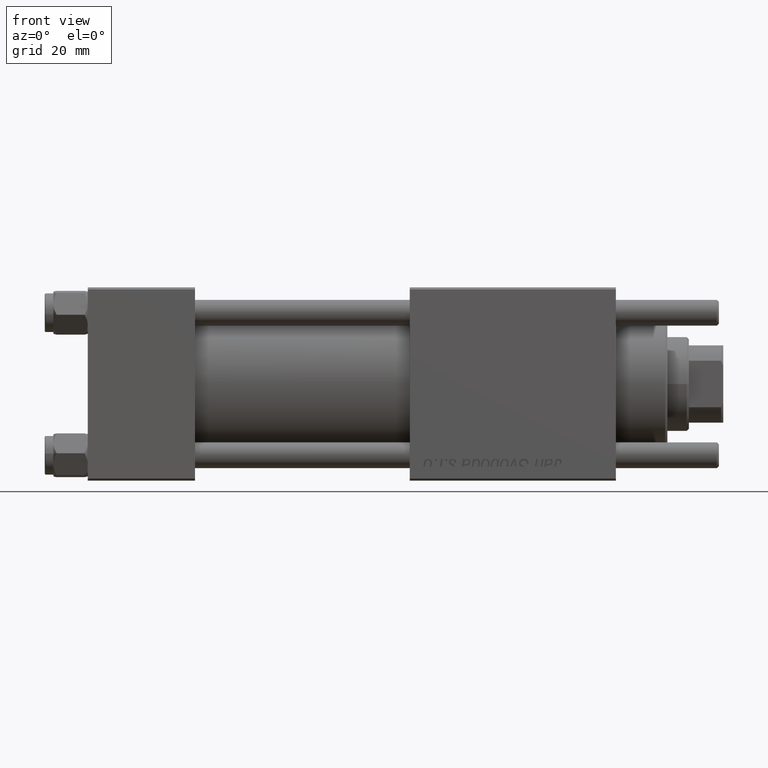
[diagram: clean part render]
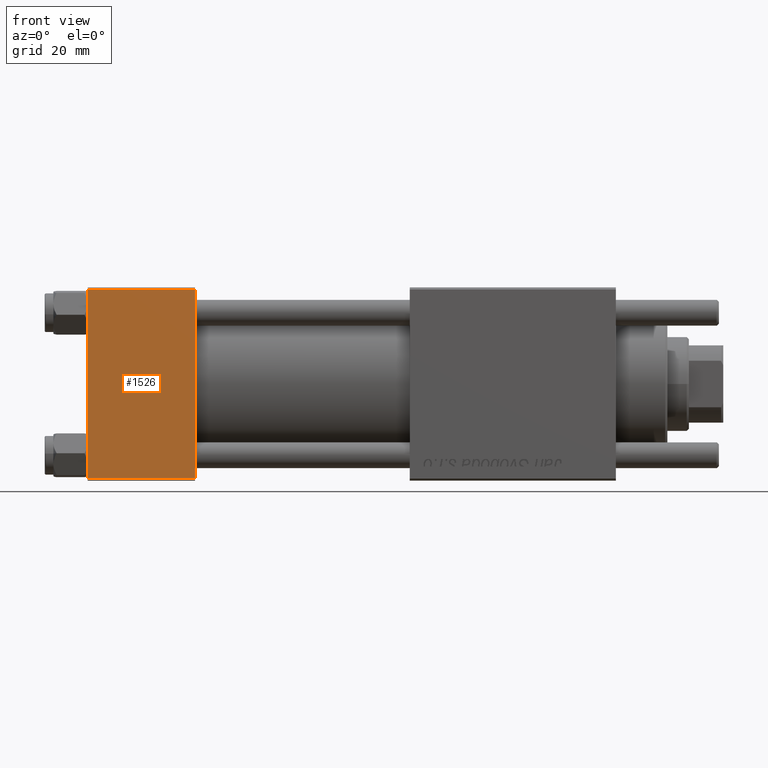
[diagram: same view with one face highlighted and labeled with its STEP entity id]
A machine part, front view. The second image highlights one B-rep face of the part: STEP entity #1526.
In plain terms, the highlighted planar face has unit normal (0, 1, 0).
Its self-contained STEP definition (entity closure, byte-faithful):
#256 = ORIENTED_EDGE ( 'NONE', *, *, #56073, .T. ) ;
#267 = DIRECTION ( 'NONE',  ( 1.000000000000000000, 0.000000000000000000, 0.000000000000000000 ) ) ;
#309 = ORIENTED_EDGE ( 'NONE', *, *, #27524, .F. ) ;
#1526 = ADVANCED_FACE ( 'NONE', ( #39083 ), #56593, .F. ) ;
#1816 = CARTESIAN_POINT ( 'NONE',  ( 0.000000000000000000, -22.50000000000000000, 22.50000000000000000 ) ) ;
#2993 = EDGE_CURVE ( 'NONE', #41677, #50442, #38369, .T. ) ;
#6833 = EDGE_CURVE ( 'NONE', #50442, #49309, #32538, .T. ) ;
#7336 = DIRECTION ( 'NONE',  ( 0.000000000000000000, 0.000000000000000000, -1.000000000000000000 ) ) ;
#7636 = DIRECTION ( 'NONE',  ( -1.000000000000000000, 0.000000000000000000, 0.000000000000000000 ) ) ;
#8225 = CARTESIAN_POINT ( 'NONE',  ( 25.00000000000000000, -22.50000000000000000, 22.00000000000000000 ) ) ;
#9620 = VECTOR ( 'NONE', #267, 1000.000000000000000 ) ;
#11628 = LINE ( 'NONE', #33467, #24361 ) ;
#12920 = DIRECTION ( 'NONE',  ( 0.000000000000000000, -0.000000000000000000, 1.000000000000000000 ) ) ;
#17212 = CARTESIAN_POINT ( 'NONE',  ( 25.00000000000000000, -22.50000000000000000, 22.50000000000000000 ) ) ;
#19372 = ORIENTED_EDGE ( 'NONE', *, *, #2993, .T. ) ;
#20524 = ORIENTED_EDGE ( 'NONE', *, *, #6833, .T. ) ;
#20898 = CARTESIAN_POINT ( 'NONE',  ( 25.00000000000000000, -22.50000000000000000, -21.99999999999997158 ) ) ;
#21005 = VERTEX_POINT ( 'NONE', #20898 ) ;
#21486 = LINE ( 'NONE', #52528, #9620 ) ;
#23891 = DIRECTION ( 'NONE',  ( 0.000000000000000000, 0.000000000000000000, -1.000000000000000000 ) ) ;
#24361 = VECTOR ( 'NONE', #7336, 1000.000000000000000 ) ;
#27524 = EDGE_CURVE ( 'NONE', #41677, #21005, #11628, .T. ) ;
#30953 = VECTOR ( 'NONE', #7636, 1000.000000000000000 ) ;
#32538 = LINE ( 'NONE', #1816, #42943 ) ;
#33467 = CARTESIAN_POINT ( 'NONE',  ( 25.00000000000000000, -22.50000000000000000, 22.50000000000000000 ) ) ;
#38369 = LINE ( 'NONE', #8225, #30953 ) ;
#39083 = FACE_OUTER_BOUND ( 'NONE', #39130, .T. ) ;
#39130 = EDGE_LOOP ( 'NONE', ( #20524, #256, #309, #19372 ) ) ;
#41381 = CARTESIAN_POINT ( 'NONE',  ( 0.000000000000000000, -22.50000000000000000, 22.00000000000000000 ) ) ;
#41677 = VERTEX_POINT ( 'NONE', #53167 ) ;
#42943 = VECTOR ( 'NONE', #23891, 1000.000000000000000 ) ;
#48827 = CARTESIAN_POINT ( 'NONE',  ( 0.000000000000000000, -22.50000000000000000, -21.99999999999997158 ) ) ;
#49309 = VERTEX_POINT ( 'NONE', #48827 ) ;
#50442 = VERTEX_POINT ( 'NONE', #41381 ) ;
#52292 = DIRECTION ( 'NONE',  ( -0.000000000000000000, 1.000000000000000000, 0.000000000000000000 ) ) ;
#52528 = CARTESIAN_POINT ( 'NONE',  ( 25.00000000000000000, -22.50000000000000000, -21.99999999999998579 ) ) ;
#53167 = CARTESIAN_POINT ( 'NONE',  ( 25.00000000000000000, -22.50000000000000000, 22.00000000000000000 ) ) ;
#54750 = AXIS2_PLACEMENT_3D ( 'NONE', #17212, #52292, #12920 ) ;
#56073 = EDGE_CURVE ( 'NONE', #49309, #21005, #21486, .T. ) ;
#56593 = PLANE ( 'NONE',  #54750 ) ;